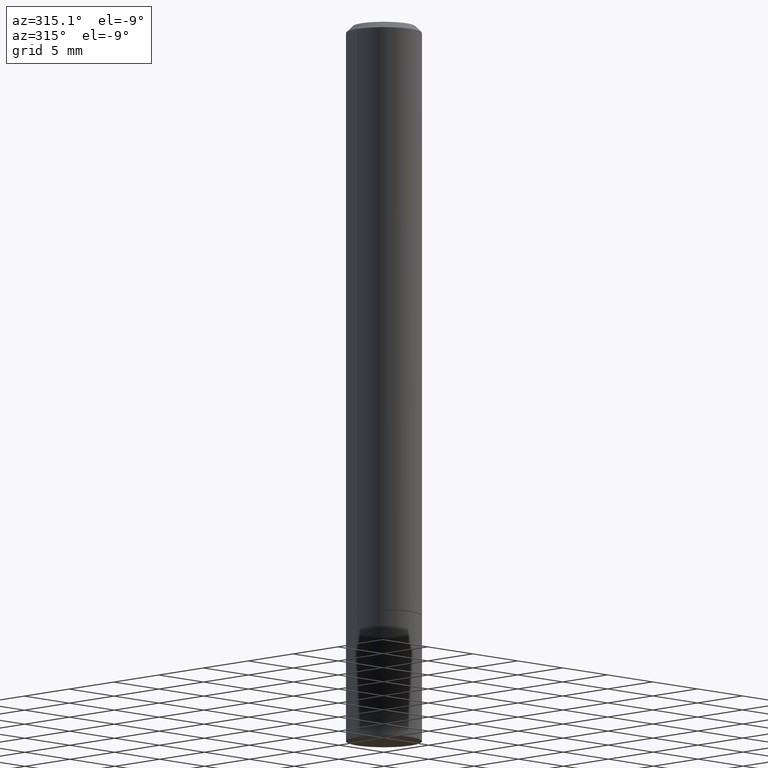
[diagram: clean part render]
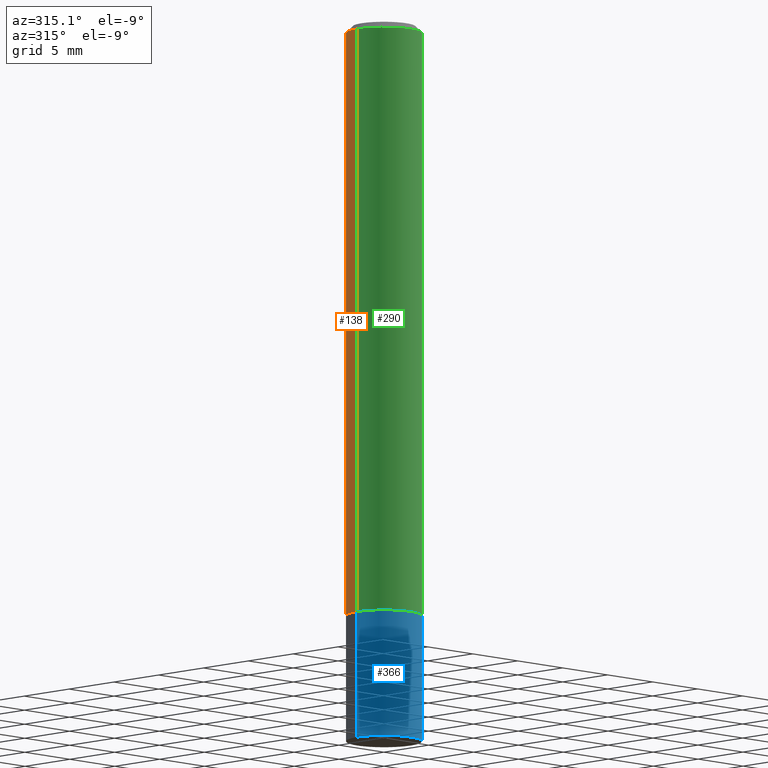
[diagram: same view with three faces highlighted in distinct colors, each labeled with its STEP entity id]
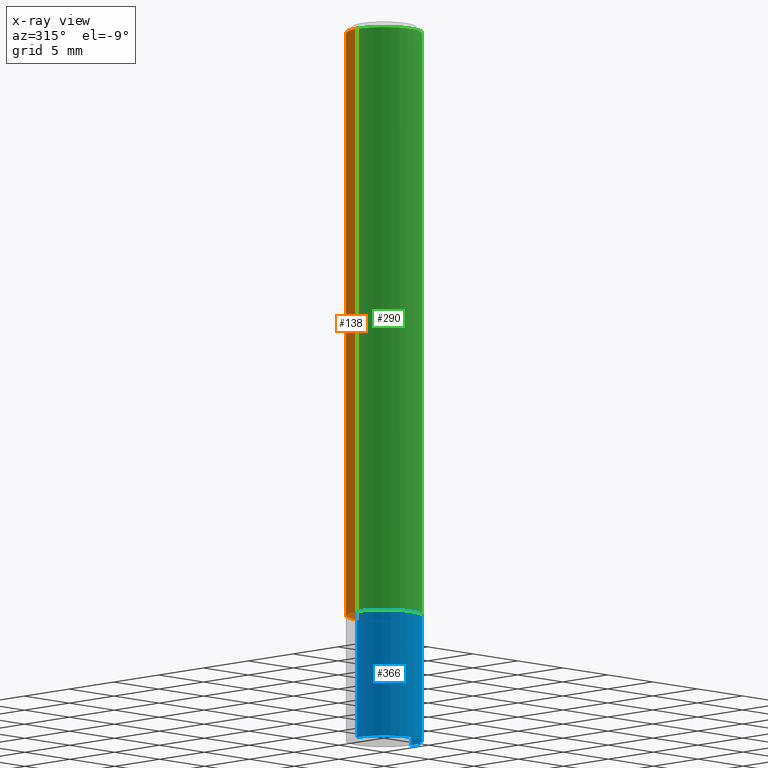
[diagram: x-ray of the same camera — body ghosted, the three highlighted faces saturated]
A machine part, auxiliary view with three faces highlighted in distinct colors.
The next image is the same camera in x-ray (body ghosted, the three faces saturated) — at least one of them is partly hidden behind the body in this view.
Their STEP definitions:

[orange] entity #138 — the highlighted cylindrical surface (partial cylindrical patch) has radius 2.9997 mm, axis along (-0, 0, 1).
#2 = EDGE_CURVE ( 'NONE', #321, #264, #237, .T. ) ;
#8 = ORIENTED_EDGE ( 'NONE', *, *, #279, .T. ) ;
#37 = DIRECTION ( 'NONE',  ( -2.445468806185136597E-29, 3.491481338843145583E-15, 1.000000000000000000 ) ) ;
#40 = CARTESIAN_POINT ( 'NONE',  ( 0.000000000000000000, 0.000000000000000000, 0.000000000000000000 ) ) ;
#42 = VECTOR ( 'NONE', #94, 39.37007874015748143 ) ;
#44 = CARTESIAN_POINT ( 'NONE',  ( 0.1180999999999998856, -8.246878922347472765E-16, 5.758764772214994135E-30 ) ) ;
#62 = VERTEX_POINT ( 'NONE', #68 ) ;
#64 = VERTEX_POINT ( 'NONE', #216 ) ;
#68 = CARTESIAN_POINT ( 'NONE',  ( 0.1180999999999999966, -7.281833480291261254E-15, -1.849399999999999933 ) ) ;
#69 = CARTESIAN_POINT ( 'NONE',  ( -0.1180999999999998856, 8.391509709326775068E-16, -5.809262341591038179E-30 ) ) ;
#81 = CARTESIAN_POINT ( 'NONE',  ( -0.1180999999999997607, 7.548582654578835839E-16, -0.01999999999999999695 ) ) ;
#82 = EDGE_CURVE ( 'NONE', #64, #264, #247, .T. ) ;
#93 = ORIENTED_EDGE ( 'NONE', *, *, #2, .F. ) ;
#94 = DIRECTION ( 'NONE',  ( -2.445468806185136877E-29, 3.491481338843145188E-15, 1.000000000000000000 ) ) ;
#108 = AXIS2_PLACEMENT_3D ( 'NONE', #40, #184, #245 ) ;
#113 = ORIENTED_EDGE ( 'NONE', *, *, #182, .F. ) ;
#119 = DIRECTION ( 'NONE',  ( 1.000000000000000000, -6.982962677686266711E-15, 0.000000000000000000 ) ) ;
#134 = CARTESIAN_POINT ( 'NONE',  ( 4.522650010158791791E-29, -6.457145588056512991E-15, -1.849399999999999933 ) ) ;
#136 = CARTESIAN_POINT ( 'NONE',  ( 0.1180999999999997607, -8.800544403136790625E-16, -0.01999999999999999695 ) ) ;
#138 = ADVANCED_FACE ( 'NONE', ( #323 ), #190, .T. ) ;
#158 = DIRECTION ( 'NONE',  ( -2.445468806185136877E-29, 3.491481338843145188E-15, 1.000000000000000000 ) ) ;
#182 = EDGE_CURVE ( 'NONE', #62, #321, #299, .T. ) ;
#184 = DIRECTION ( 'NONE',  ( -2.445468806185136597E-29, 3.491481338843145583E-15, 1.000000000000000000 ) ) ;
#190 = CYLINDRICAL_SURFACE ( 'NONE', #108, 0.1180999999999998856 ) ;
#216 = CARTESIAN_POINT ( 'NONE',  ( -0.1181000000000000105, -2.424336636484006398E-15, -1.849399999999999933 ) ) ;
#221 = VECTOR ( 'NONE', #158, 39.37007874015748143 ) ;
#226 = DIRECTION ( 'NONE',  ( 1.000000000000000000, -6.982962677686265133E-15, 0.000000000000000000 ) ) ;
#230 = EDGE_LOOP ( 'NONE', ( #8, #352, #93, #113 ) ) ;
#237 = CIRCLE ( 'NONE', #325, 0.1180999999999997607 ) ;
#244 = AXIS2_PLACEMENT_3D ( 'NONE', #134, #254, #226 ) ;
#245 = DIRECTION ( 'NONE',  ( 1.000000000000000000, -6.982962677686266711E-15, 4.876176775795935232E-29 ) ) ;
#247 = LINE ( 'NONE', #69, #42 ) ;
#254 = DIRECTION ( 'NONE',  ( -2.445468806185136597E-29, 3.491481338843145583E-15, 1.000000000000000000 ) ) ;
#260 = CARTESIAN_POINT ( 'NONE',  ( 4.890937612370271407E-31, -6.982962677686290376E-17, -0.01999999999999999695 ) ) ;
#264 = VERTEX_POINT ( 'NONE', #81 ) ;
#279 = EDGE_CURVE ( 'NONE', #62, #64, #335, .T. ) ;
#299 = LINE ( 'NONE', #44, #221 ) ;
#321 = VERTEX_POINT ( 'NONE', #136 ) ;
#323 = FACE_OUTER_BOUND ( 'NONE', #230, .T. ) ;
#325 = AXIS2_PLACEMENT_3D ( 'NONE', #260, #37, #119 ) ;
#335 = CIRCLE ( 'NONE', #244, 0.1180999999999999966 ) ;
#352 = ORIENTED_EDGE ( 'NONE', *, *, #82, .T. ) ;

[blue] entity #366 — the highlighted cylindrical surface (partial cylindrical patch) has radius 2.9997 mm, axis along (-0, 0, 1).
#5 = CIRCLE ( 'NONE', #232, 0.1180999999999999966 ) ;
#6 = CARTESIAN_POINT ( 'NONE',  ( 4.525095478964976833E-29, -6.460637069395356787E-15, -1.850400000000000045 ) ) ;
#17 = CARTESIAN_POINT ( 'NONE',  ( -0.1180999999999999966, -6.308784200013950972E-15, -2.244099999999999984 ) ) ;
#28 = DIRECTION ( 'NONE',  ( -2.445468806185136597E-29, 3.491481338843145583E-15, 1.000000000000000000 ) ) ;
#39 = ORIENTED_EDGE ( 'NONE', *, *, #296, .T. ) ;
#41 = DIRECTION ( 'NONE',  ( -2.445468806185136877E-29, 3.491481338843145188E-15, 1.000000000000000000 ) ) ;
#45 = LINE ( 'NONE', #147, #157 ) ;
#48 = CARTESIAN_POINT ( 'NONE',  ( 0.1180999999999999966, -8.659921164732650602E-15, -2.244099999999999984 ) ) ;
#56 = DIRECTION ( 'NONE',  ( -2.445468806185136597E-29, 3.491481338843145583E-15, 1.000000000000000000 ) ) ;
#60 = DIRECTION ( 'NONE',  ( -2.445468806185136597E-29, 3.491481338843145583E-15, 1.000000000000000000 ) ) ;
#80 = AXIS2_PLACEMENT_3D ( 'NONE', #337, #28, #168 ) ;
#85 = VERTEX_POINT ( 'NONE', #215 ) ;
#125 = FACE_OUTER_BOUND ( 'NONE', #297, .T. ) ;
#142 = VERTEX_POINT ( 'NONE', #48 ) ;
#146 = ORIENTED_EDGE ( 'NONE', *, *, #217, .F. ) ;
#147 = CARTESIAN_POINT ( 'NONE',  ( -0.1180999999999999966, 8.391509709326782957E-16, -5.809262341591043784E-30 ) ) ;
#157 = VECTOR ( 'NONE', #41, 39.37007874015748143 ) ;
#168 = DIRECTION ( 'NONE',  ( 1.000000000000000000, -6.982962677686265133E-15, 0.000000000000000000 ) ) ;
#169 = CARTESIAN_POINT ( 'NONE',  ( -0.1180999999999999966, -6.308784200013950972E-15, -1.850400000000000045 ) ) ;
#170 = LINE ( 'NONE', #336, #189 ) ;
#189 = VECTOR ( 'NONE', #252, 39.37007874015748143 ) ;
#202 = VERTEX_POINT ( 'NONE', #169 ) ;
#211 = CARTESIAN_POINT ( 'NONE',  ( 0.000000000000000000, 0.000000000000000000, 0.000000000000000000 ) ) ;
#215 = CARTESIAN_POINT ( 'NONE',  ( 0.1180999999999999966, -7.285324961630104261E-15, -1.850400000000000045 ) ) ;
#217 = EDGE_CURVE ( 'NONE', #202, #85, #5, .T. ) ;
#232 = AXIS2_PLACEMENT_3D ( 'NONE', #6, #56, #341 ) ;
#236 = ORIENTED_EDGE ( 'NONE', *, *, #266, .T. ) ;
#238 = CIRCLE ( 'NONE', #80, 0.1180999999999999966 ) ;
#240 = DIRECTION ( 'NONE',  ( 1.000000000000000000, -6.982962677686266711E-15, 4.876176775795936353E-29 ) ) ;
#252 = DIRECTION ( 'NONE',  ( -2.445468806185136877E-29, 3.491481338843145188E-15, 1.000000000000000000 ) ) ;
#266 = EDGE_CURVE ( 'NONE', #142, #85, #170, .T. ) ;
#294 = CYLINDRICAL_SURFACE ( 'NONE', #320, 0.1180999999999999966 ) ;
#296 = EDGE_CURVE ( 'NONE', #345, #142, #238, .T. ) ;
#297 = EDGE_LOOP ( 'NONE', ( #319, #39, #236, #146 ) ) ;
#319 = ORIENTED_EDGE ( 'NONE', *, *, #362, .F. ) ;
#320 = AXIS2_PLACEMENT_3D ( 'NONE', #211, #60, #240 ) ;
#336 = CARTESIAN_POINT ( 'NONE',  ( 0.1180999999999999966, -8.246878922347480654E-16, 5.758764772215000440E-30 ) ) ;
#337 = CARTESIAN_POINT ( 'NONE',  ( 5.487876547960064752E-29, -7.835233272497902340E-15, -2.244099999999999984 ) ) ;
#341 = DIRECTION ( 'NONE',  ( 1.000000000000000000, -6.982962677686265133E-15, 0.000000000000000000 ) ) ;
#345 = VERTEX_POINT ( 'NONE', #17 ) ;
#362 = EDGE_CURVE ( 'NONE', #345, #202, #45, .T. ) ;
#366 = ADVANCED_FACE ( 'NONE', ( #125 ), #294, .T. ) ;

[green] entity #290 — the highlighted cylindrical surface (partial cylindrical patch) has radius 2.9997 mm, axis along (-0, 0, 1).
#4 = DIRECTION ( 'NONE',  ( -2.445468806185136597E-29, 3.491481338843145583E-15, 1.000000000000000000 ) ) ;
#13 = EDGE_LOOP ( 'NONE', ( #292, #111, #295, #88 ) ) ;
#15 = AXIS2_PLACEMENT_3D ( 'NONE', #79, #285, #52 ) ;
#42 = VECTOR ( 'NONE', #94, 39.37007874015748143 ) ;
#44 = CARTESIAN_POINT ( 'NONE',  ( 0.1180999999999998856, -8.246878922347472765E-16, 5.758764772214994135E-30 ) ) ;
#52 = DIRECTION ( 'NONE',  ( 1.000000000000000000, -6.982962677686266711E-15, 4.876176775795935232E-29 ) ) ;
#54 = DIRECTION ( 'NONE',  ( -2.445468806185136597E-29, 3.491481338843145583E-15, 1.000000000000000000 ) ) ;
#62 = VERTEX_POINT ( 'NONE', #68 ) ;
#64 = VERTEX_POINT ( 'NONE', #216 ) ;
#68 = CARTESIAN_POINT ( 'NONE',  ( 0.1180999999999999966, -7.281833480291261254E-15, -1.849399999999999933 ) ) ;
#69 = CARTESIAN_POINT ( 'NONE',  ( -0.1180999999999998856, 8.391509709326775068E-16, -5.809262341591038179E-30 ) ) ;
#79 = CARTESIAN_POINT ( 'NONE',  ( 0.000000000000000000, 0.000000000000000000, 0.000000000000000000 ) ) ;
#81 = CARTESIAN_POINT ( 'NONE',  ( -0.1180999999999997607, 7.548582654578835839E-16, -0.01999999999999999695 ) ) ;
#82 = EDGE_CURVE ( 'NONE', #64, #264, #247, .T. ) ;
#88 = ORIENTED_EDGE ( 'NONE', *, *, #339, .F. ) ;
#92 = AXIS2_PLACEMENT_3D ( 'NONE', #284, #4, #196 ) ;
#94 = DIRECTION ( 'NONE',  ( -2.445468806185136877E-29, 3.491481338843145188E-15, 1.000000000000000000 ) ) ;
#111 = ORIENTED_EDGE ( 'NONE', *, *, #332, .T. ) ;
#117 = CIRCLE ( 'NONE', #255, 0.1180999999999999966 ) ;
#136 = CARTESIAN_POINT ( 'NONE',  ( 0.1180999999999997607, -8.800544403136790625E-16, -0.01999999999999999695 ) ) ;
#158 = DIRECTION ( 'NONE',  ( -2.445468806185136877E-29, 3.491481338843145188E-15, 1.000000000000000000 ) ) ;
#165 = DIRECTION ( 'NONE',  ( 1.000000000000000000, -6.982962677686265133E-15, 0.000000000000000000 ) ) ;
#182 = EDGE_CURVE ( 'NONE', #62, #321, #299, .T. ) ;
#196 = DIRECTION ( 'NONE',  ( 1.000000000000000000, -6.982962677686266711E-15, 0.000000000000000000 ) ) ;
#216 = CARTESIAN_POINT ( 'NONE',  ( -0.1181000000000000105, -2.424336636484006398E-15, -1.849399999999999933 ) ) ;
#221 = VECTOR ( 'NONE', #158, 39.37007874015748143 ) ;
#247 = LINE ( 'NONE', #69, #42 ) ;
#249 = CIRCLE ( 'NONE', #92, 0.1180999999999997607 ) ;
#255 = AXIS2_PLACEMENT_3D ( 'NONE', #309, #54, #165 ) ;
#264 = VERTEX_POINT ( 'NONE', #81 ) ;
#283 = CYLINDRICAL_SURFACE ( 'NONE', #15, 0.1180999999999998856 ) ;
#284 = CARTESIAN_POINT ( 'NONE',  ( 4.890937612370271407E-31, -6.982962677686290376E-17, -0.01999999999999999695 ) ) ;
#285 = DIRECTION ( 'NONE',  ( -2.445468806185136597E-29, 3.491481338843145583E-15, 1.000000000000000000 ) ) ;
#290 = ADVANCED_FACE ( 'NONE', ( #308 ), #283, .T. ) ;
#292 = ORIENTED_EDGE ( 'NONE', *, *, #82, .F. ) ;
#295 = ORIENTED_EDGE ( 'NONE', *, *, #182, .T. ) ;
#299 = LINE ( 'NONE', #44, #221 ) ;
#308 = FACE_OUTER_BOUND ( 'NONE', #13, .T. ) ;
#309 = CARTESIAN_POINT ( 'NONE',  ( 4.522650010158791791E-29, -6.457145588056512991E-15, -1.849399999999999933 ) ) ;
#321 = VERTEX_POINT ( 'NONE', #136 ) ;
#332 = EDGE_CURVE ( 'NONE', #64, #62, #117, .T. ) ;
#339 = EDGE_CURVE ( 'NONE', #264, #321, #249, .T. ) ;